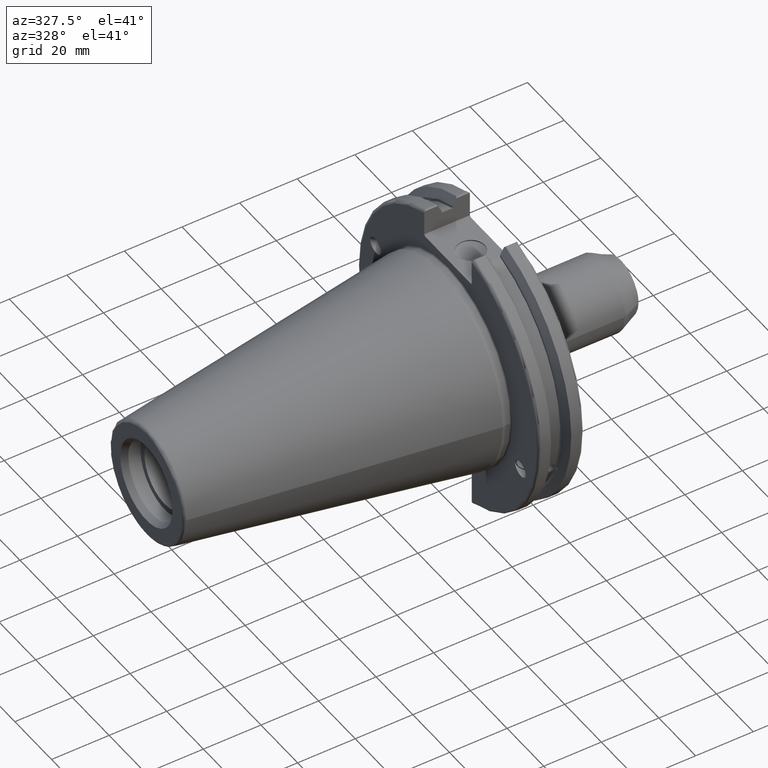
[diagram: clean part render]
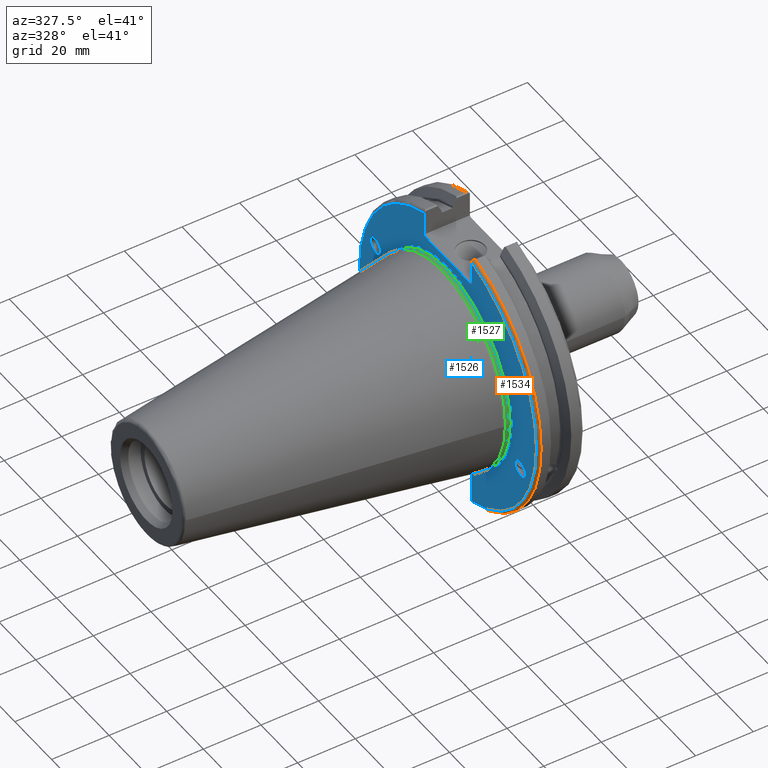
[diagram: same view with three faces highlighted in distinct colors, each labeled with its STEP entity id]
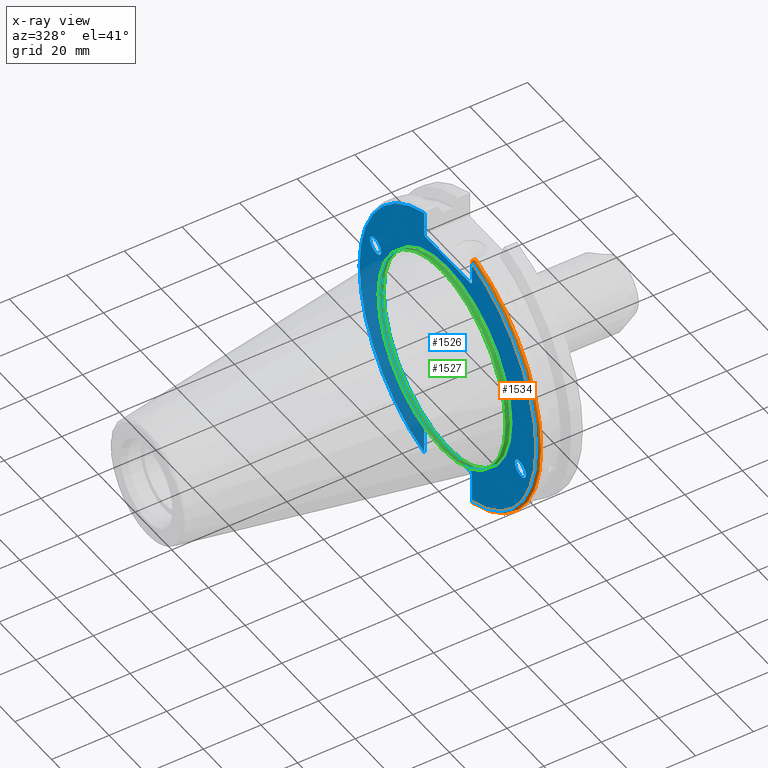
[diagram: x-ray of the same camera — body ghosted, the three highlighted faces saturated]
A machine part, auxiliary view with three faces highlighted in distinct colors.
The next image is the same camera in x-ray (body ghosted, the three faces saturated) — at least one of them is partly hidden behind the body in this view.
Their STEP definitions:

[orange] entity #1534 — the highlighted toroidal blend (fillet) surface has major radius 48.2125 mm and minor (blend) radius 1 mm.
#75=TOROIDAL_SURFACE('',#1703,48.2125,1.);
#151=CIRCLE('',#1691,48.2125);
#156=CIRCLE('',#1704,49.2125);
#239=FACE_OUTER_BOUND('',#342,.T.);
#342=EDGE_LOOP('',(#1292,#1293,#1294,#1295,#1296,#1297));
#603=B_SPLINE_CURVE_WITH_KNOTS('',3,(#3025,#3026,#3027,#3028,#3029,#3030),
 .UNSPECIFIED.,.F.,.F.,(4,2,4),(0.0976892167532858,0.112000071948292,0.150881870548587),
 .UNSPECIFIED.);
#604=B_SPLINE_CURVE_WITH_KNOTS('',3,(#3051,#3052,#3053,#3054,#3055,#3056),
 .UNSPECIFIED.,.F.,.F.,(4,2,4),(0.452859340315922,0.491741138916218,0.506051994111223),
 .UNSPECIFIED.);
#605=B_SPLINE_CURVE_WITH_KNOTS('',3,(#3060,#3061,#3062,#3063,#3064,#3065,
#3066,#3067),.UNSPECIFIED.,.F.,.F.,(4,2,2,4),(-0.104075769062722,-0.0730268503455485,
-0.034363987365627,0.),.UNSPECIFIED.);
#606=B_SPLINE_CURVE_WITH_KNOTS('',3,(#3070,#3071,#3072,#3073,#3074,#3075,
#3076,#3077),.UNSPECIFIED.,.F.,.F.,(4,2,2,4),(0.,0.0343639873656262,0.073026850345548,
0.104075769062723),.UNSPECIFIED.);
#712=VERTEX_POINT('',#2903);
#713=VERTEX_POINT('',#2904);
#738=VERTEX_POINT('',#3024);
#744=VERTEX_POINT('',#3049);
#745=VERTEX_POINT('',#3059);
#746=VERTEX_POINT('',#3068);
#900=EDGE_CURVE('',#712,#713,#151,.T.);
#934=EDGE_CURVE('',#738,#712,#603,.T.);
#944=EDGE_CURVE('',#713,#744,#604,.T.);
#946=EDGE_CURVE('',#744,#745,#605,.T.);
#947=EDGE_CURVE('',#745,#746,#156,.T.);
#948=EDGE_CURVE('',#746,#738,#606,.T.);
#1292=ORIENTED_EDGE('',*,*,#946,.T.);
#1293=ORIENTED_EDGE('',*,*,#947,.T.);
#1294=ORIENTED_EDGE('',*,*,#948,.T.);
#1295=ORIENTED_EDGE('',*,*,#934,.T.);
#1296=ORIENTED_EDGE('',*,*,#900,.T.);
#1297=ORIENTED_EDGE('',*,*,#944,.T.);
#1534=ADVANCED_FACE('',(#239),#75,.T.);
#1691=AXIS2_PLACEMENT_3D('',#2905,#2002,#2003);
#1703=AXIS2_PLACEMENT_3D('',#3058,#2053,#2054);
#1704=AXIS2_PLACEMENT_3D('',#3069,#2055,#2056);
#2002=DIRECTION('center_axis',(1.,0.,0.));
#2003=DIRECTION('ref_axis',(0.,-1.,1.60812264967664E-16));
#2053=DIRECTION('center_axis',(1.,0.,0.));
#2054=DIRECTION('ref_axis',(0.,0.,-1.));
#2055=DIRECTION('center_axis',(-1.,0.,0.));
#2056=DIRECTION('ref_axis',(0.,-1.,1.60812264967664E-16));
#2903=CARTESIAN_POINT('',(3.175,-12.95,46.4407434937254));
#2904=CARTESIAN_POINT('',(3.175,-12.95,-46.4407434937254));
#2905=CARTESIAN_POINT('Origin',(3.175,0.,0.));
#3024=CARTESIAN_POINT('',(3.31949794294344,-12.95,46.9780755322918));
#3025=CARTESIAN_POINT('Ctrl Pts',(3.31949794294344,-12.95,46.9780755322918));
#3026=CARTESIAN_POINT('Ctrl Pts',(3.29341556483839,-12.95,46.9333752207329));
#3027=CARTESIAN_POINT('Ctrl Pts',(3.27115672912336,-12.95,46.887363294568));
#3028=CARTESIAN_POINT('Ctrl Pts',(3.20453530071253,-12.95,46.7230464903732));
#3029=CARTESIAN_POINT('Ctrl Pts',(3.175,-12.95,46.5703494890597));
#3030=CARTESIAN_POINT('Ctrl Pts',(3.175,-12.95,46.4407434937254));
#3049=CARTESIAN_POINT('',(3.31949794294343,-12.95,-46.9780755322917));
#3051=CARTESIAN_POINT('Ctrl Pts',(3.175,-12.95,-46.4407434937254));
#3052=CARTESIAN_POINT('Ctrl Pts',(3.175,-12.95,-46.5703494890597));
#3053=CARTESIAN_POINT('Ctrl Pts',(3.20453530071253,-12.95,-46.7230464903732));
#3054=CARTESIAN_POINT('Ctrl Pts',(3.27115672912336,-12.95,-46.887363294568));
#3055=CARTESIAN_POINT('Ctrl Pts',(3.29341556483838,-12.95,-46.9333752207329));
#3056=CARTESIAN_POINT('Ctrl Pts',(3.31949794294343,-12.95,-46.9780755322917));
#3058=CARTESIAN_POINT('Origin',(4.175,0.,0.));
#3059=CARTESIAN_POINT('',(4.175,-13.4317035994433,-47.3440544806494));
#3060=CARTESIAN_POINT('Ctrl Pts',(3.31949794294343,-12.95,-46.9780755322917));
#3061=CARTESIAN_POINT('Ctrl Pts',(3.36785032278753,-13.0300321736484,-47.0388807469102));
#3062=CARTESIAN_POINT('Ctrl Pts',(3.43235971798504,-13.1083611826073,-47.0983919657547));
#3063=CARTESIAN_POINT('Ctrl Pts',(3.58507512107923,-13.2478194810696,-47.2043467509586));
#3064=CARTESIAN_POINT('Ctrl Pts',(3.70638116490964,-13.3242014686233,-47.2623787015413));
#3065=CARTESIAN_POINT('Ctrl Pts',(3.92661103245834,-13.4067722493645,-47.3251126473446));
#3066=CARTESIAN_POINT('Ctrl Pts',(4.06045337544791,-13.4317035994434,-47.3440544806494));
#3067=CARTESIAN_POINT('Ctrl Pts',(4.175,-13.4317035994434,-47.3440544806494));
#3068=CARTESIAN_POINT('',(4.175,-13.4317035994433,47.3440544806494));
#3069=CARTESIAN_POINT('Origin',(4.175,0.,0.));
#3070=CARTESIAN_POINT('Ctrl Pts',(4.175,-13.4317035994433,47.3440544806494));
#3071=CARTESIAN_POINT('Ctrl Pts',(4.06045337544791,-13.4317035994433,47.3440544806494));
#3072=CARTESIAN_POINT('Ctrl Pts',(3.92661103245835,-13.4067722493645,47.3251126473446));
#3073=CARTESIAN_POINT('Ctrl Pts',(3.70638116490965,-13.3242014686233,47.2623787015413));
#3074=CARTESIAN_POINT('Ctrl Pts',(3.58507512107923,-13.2478194810695,47.2043467509586));
#3075=CARTESIAN_POINT('Ctrl Pts',(3.43235971798504,-13.1083611826073,47.0983919657547));
#3076=CARTESIAN_POINT('Ctrl Pts',(3.36785032278754,-13.0300321736484,47.0388807469102));
#3077=CARTESIAN_POINT('Ctrl Pts',(3.31949794294344,-12.95,46.9780755322918));

[blue] entity #1526 — the highlighted planar face has unit normal (-1, 0, 0).
#31=ELLIPSE('',#1646,3.05193647190364,2.5);
#32=ELLIPSE('',#1680,3.05193647190364,2.5);
#43=PLANE('',#1690);
#92=FACE_BOUND('',#332,.T.);
#93=FACE_BOUND('',#333,.T.);
#94=FACE_BOUND('',#334,.T.);
#149=CIRCLE('',#1688,35.125);
#151=CIRCLE('',#1691,48.2125);
#152=CIRCLE('',#1692,48.2125);
#231=FACE_OUTER_BOUND('',#331,.T.);
#331=EDGE_LOOP('',(#1220,#1221,#1222,#1223,#1224,#1225,#1226,#1227,#1228,
#1229,#1230,#1231));
#332=EDGE_LOOP('',(#1232));
#333=EDGE_LOOP('',(#1233));
#334=EDGE_LOOP('',(#1234));
#428=LINE('',#2907,#521);
#429=LINE('',#2909,#522);
#430=LINE('',#2911,#523);
#431=LINE('',#2913,#524);
#432=LINE('',#2915,#525);
#433=LINE('',#2919,#526);
#434=LINE('',#2921,#527);
#435=LINE('',#2923,#528);
#436=LINE('',#2925,#529);
#437=LINE('',#2926,#530);
#521=VECTOR('',#2004,10.);
#522=VECTOR('',#2005,10.);
#523=VECTOR('',#2006,10.);
#524=VECTOR('',#2007,10.);
#525=VECTOR('',#2008,10.);
#526=VECTOR('',#2011,10.);
#527=VECTOR('',#2012,10.);
#528=VECTOR('',#2013,10.);
#529=VECTOR('',#2014,10.);
#530=VECTOR('',#2015,10.);
#668=VERTEX_POINT('',#2624);
#706=VERTEX_POINT('',#2883);
#711=VERTEX_POINT('',#2898);
#712=VERTEX_POINT('',#2903);
#713=VERTEX_POINT('',#2904);
#714=VERTEX_POINT('',#2906);
#715=VERTEX_POINT('',#2908);
#716=VERTEX_POINT('',#2910);
#717=VERTEX_POINT('',#2912);
#718=VERTEX_POINT('',#2914);
#719=VERTEX_POINT('',#2916);
#720=VERTEX_POINT('',#2918);
#721=VERTEX_POINT('',#2920);
#722=VERTEX_POINT('',#2922);
#723=VERTEX_POINT('',#2924);
#840=EDGE_CURVE('',#668,#668,#31,.T.);
#891=EDGE_CURVE('',#706,#706,#32,.T.);
#898=EDGE_CURVE('',#711,#711,#149,.T.);
#900=EDGE_CURVE('',#712,#713,#151,.T.);
#901=EDGE_CURVE('',#712,#714,#428,.T.);
#902=EDGE_CURVE('',#715,#714,#429,.T.);
#903=EDGE_CURVE('',#715,#716,#430,.T.);
#904=EDGE_CURVE('',#717,#716,#431,.T.);
#905=EDGE_CURVE('',#717,#718,#432,.T.);
#906=EDGE_CURVE('',#719,#718,#152,.T.);
#907=EDGE_CURVE('',#719,#720,#433,.T.);
#908=EDGE_CURVE('',#721,#720,#434,.T.);
#909=EDGE_CURVE('',#721,#722,#435,.T.);
#910=EDGE_CURVE('',#723,#722,#436,.T.);
#911=EDGE_CURVE('',#723,#713,#437,.T.);
#1220=ORIENTED_EDGE('',*,*,#900,.F.);
#1221=ORIENTED_EDGE('',*,*,#901,.T.);
#1222=ORIENTED_EDGE('',*,*,#902,.F.);
#1223=ORIENTED_EDGE('',*,*,#903,.T.);
#1224=ORIENTED_EDGE('',*,*,#904,.F.);
#1225=ORIENTED_EDGE('',*,*,#905,.T.);
#1226=ORIENTED_EDGE('',*,*,#906,.F.);
#1227=ORIENTED_EDGE('',*,*,#907,.T.);
#1228=ORIENTED_EDGE('',*,*,#908,.F.);
#1229=ORIENTED_EDGE('',*,*,#909,.T.);
#1230=ORIENTED_EDGE('',*,*,#910,.F.);
#1231=ORIENTED_EDGE('',*,*,#911,.T.);
#1232=ORIENTED_EDGE('',*,*,#840,.T.);
#1233=ORIENTED_EDGE('',*,*,#891,.T.);
#1234=ORIENTED_EDGE('',*,*,#898,.F.);
#1526=ADVANCED_FACE('',(#231,#92,#93,#94),#43,.T.);
#1646=AXIS2_PLACEMENT_3D('',#2626,#1894,#1895);
#1680=AXIS2_PLACEMENT_3D('',#2885,#1978,#1979);
#1688=AXIS2_PLACEMENT_3D('',#2900,#1996,#1997);
#1690=AXIS2_PLACEMENT_3D('',#2902,#2000,#2001);
#1691=AXIS2_PLACEMENT_3D('',#2905,#2002,#2003);
#1692=AXIS2_PLACEMENT_3D('',#2917,#2009,#2010);
#1894=DIRECTION('center_axis',(1.,0.,0.));
#1895=DIRECTION('ref_axis',(0.,-0.939692620785908,-0.342020143325668));
#1978=DIRECTION('center_axis',(1.,0.,0.));
#1979=DIRECTION('ref_axis',(0.,0.939692620785908,0.342020143325669));
#1996=DIRECTION('center_axis',(-1.,0.,0.));
#1997=DIRECTION('ref_axis',(0.,-1.,1.83697019872103E-16));
#2000=DIRECTION('center_axis',(-1.,0.,0.));
#2001=DIRECTION('ref_axis',(0.,0.,1.));
#2002=DIRECTION('center_axis',(1.,0.,0.));
#2003=DIRECTION('ref_axis',(0.,-1.,1.60812264967664E-16));
#2004=DIRECTION('',(0.,0.,-1.));
#2005=DIRECTION('',(0.,-0.707106781186549,0.707106781186546));
#2006=DIRECTION('',(0.,1.,0.));
#2007=DIRECTION('',(0.,-0.707106781186549,-0.707106781186546));
#2008=DIRECTION('',(0.,0.,1.));
#2009=DIRECTION('center_axis',(1.,0.,0.));
#2010=DIRECTION('ref_axis',(0.,1.,-6.12323399573677E-17));
#2011=DIRECTION('',(0.,0.,1.));
#2012=DIRECTION('',(0.,0.707106781186549,-0.707106781186546));
#2013=DIRECTION('',(0.,-1.,0.));
#2014=DIRECTION('',(0.,0.707106781186549,0.707106781186546));
#2015=DIRECTION('',(0.,0.,-1.));
#2624=CARTESIAN_POINT('',(3.175,-36.5992078912529,-13.3210222701368));
#2626=CARTESIAN_POINT('Origin',(3.175,-39.4670900730082,-14.3648460196781));
#2883=CARTESIAN_POINT('',(3.175,36.5992078912529,13.3210222701368));
#2885=CARTESIAN_POINT('Origin',(3.175,39.4670900730082,14.3648460196781));
#2898=CARTESIAN_POINT('',(3.175,-4.30157188200508E-15,35.125));
#2900=CARTESIAN_POINT('Origin',(3.175,0.,0.));
#2902=CARTESIAN_POINT('Origin',(3.175,49.2125,0.));
#2903=CARTESIAN_POINT('',(3.175,-12.95,46.4407434937254));
#2904=CARTESIAN_POINT('',(3.175,-12.95,-46.4407434937254));
#2905=CARTESIAN_POINT('Origin',(3.175,0.,0.));
#2906=CARTESIAN_POINT('',(3.175,-12.95,38.219));
#2907=CARTESIAN_POINT('',(3.175,-12.95,18.8595));
#2908=CARTESIAN_POINT('',(3.175,-12.45,37.719));
#2909=CARTESIAN_POINT('',(3.175,12.2703750000001,12.998625));
#2910=CARTESIAN_POINT('',(3.175,12.45,37.719));
#2911=CARTESIAN_POINT('',(3.175,24.60625,37.719));
#2912=CARTESIAN_POINT('',(3.175,12.95,38.219));
#2913=CARTESIAN_POINT('',(3.175,12.335875,37.604875));
#2914=CARTESIAN_POINT('',(3.175,12.95,46.4407434937254));
#2915=CARTESIAN_POINT('',(3.175,12.95,18.8595));
#2916=CARTESIAN_POINT('',(3.175,12.95,-46.4407434937254));
#2917=CARTESIAN_POINT('Origin',(3.175,0.,0.));
#2918=CARTESIAN_POINT('',(3.175,12.95,-35.806));
#2919=CARTESIAN_POINT('',(3.175,12.95,-17.653));
#2920=CARTESIAN_POINT('',(3.175,12.45,-35.306));
#2921=CARTESIAN_POINT('',(3.175,12.939125,-35.795125));
#2922=CARTESIAN_POINT('',(3.175,-12.45,-35.306));
#2923=CARTESIAN_POINT('',(3.175,24.60625,-35.306));
#2924=CARTESIAN_POINT('',(3.175,-12.95,-35.806));
#2925=CARTESIAN_POINT('',(3.175,11.6671250000001,-11.188875));
#2926=CARTESIAN_POINT('',(3.175,-12.95,-17.653));

[green] entity #1527 — the highlighted cylindrical surface (bore or boss wall) has radius 34.625 mm, axis along (1, 0, 0).
#147=CIRCLE('',#1686,34.625);
#150=CIRCLE('',#1689,34.625);
#153=CIRCLE('',#1694,34.625);
#232=FACE_OUTER_BOUND('',#335,.T.);
#335=EDGE_LOOP('',(#1235,#1236,#1237,#1238,#1239));
#438=LINE('',#2929,#531);
#531=VECTOR('',#2018,34.625);
#709=VERTEX_POINT('',#2895);
#710=VERTEX_POINT('',#2896);
#724=VERTEX_POINT('',#2928);
#896=EDGE_CURVE('',#709,#710,#147,.T.);
#899=EDGE_CURVE('',#710,#709,#150,.T.);
#912=EDGE_CURVE('',#709,#724,#438,.T.);
#913=EDGE_CURVE('',#724,#724,#153,.T.);
#1235=ORIENTED_EDGE('',*,*,#896,.F.);
#1236=ORIENTED_EDGE('',*,*,#912,.T.);
#1237=ORIENTED_EDGE('',*,*,#913,.T.);
#1238=ORIENTED_EDGE('',*,*,#912,.F.);
#1239=ORIENTED_EDGE('',*,*,#899,.F.);
#1476=CYLINDRICAL_SURFACE('',#1693,34.625);
#1527=ADVANCED_FACE('',(#232),#1476,.T.);
#1686=AXIS2_PLACEMENT_3D('',#2897,#1992,#1993);
#1689=AXIS2_PLACEMENT_3D('',#2901,#1998,#1999);
#1693=AXIS2_PLACEMENT_3D('',#2927,#2016,#2017);
#1694=AXIS2_PLACEMENT_3D('',#2930,#2019,#2020);
#1992=DIRECTION('center_axis',(1.,0.,0.));
#1993=DIRECTION('ref_axis',(0.,-1.,1.83697019872103E-16));
#1998=DIRECTION('center_axis',(1.,0.,0.));
#1999=DIRECTION('ref_axis',(0.,-1.,1.83697019872103E-16));
#2016=DIRECTION('center_axis',(1.,0.,0.));
#2017=DIRECTION('ref_axis',(0.,1.,0.));
#2018=DIRECTION('',(-1.,0.,0.));
#2019=DIRECTION('center_axis',(1.,0.,0.));
#2020=DIRECTION('ref_axis',(0.,0.,-1.));
#2895=CARTESIAN_POINT('',(2.675,-34.625,-4.24033954204771E-15));
#2896=CARTESIAN_POINT('',(2.675,-4.24033954204771E-15,34.625));
#2897=CARTESIAN_POINT('Origin',(2.675,0.,0.));
#2901=CARTESIAN_POINT('Origin',(2.675,0.,0.));
#2927=CARTESIAN_POINT('Origin',(2.14730762113533,0.,0.));
#2928=CARTESIAN_POINT('',(1.11961524227064,-34.625,-4.24033954204771E-15));
#2929=CARTESIAN_POINT('',(2.14730762113533,-34.625,-4.24033954204771E-15));
#2930=CARTESIAN_POINT('Origin',(1.11961524227064,0.,0.));